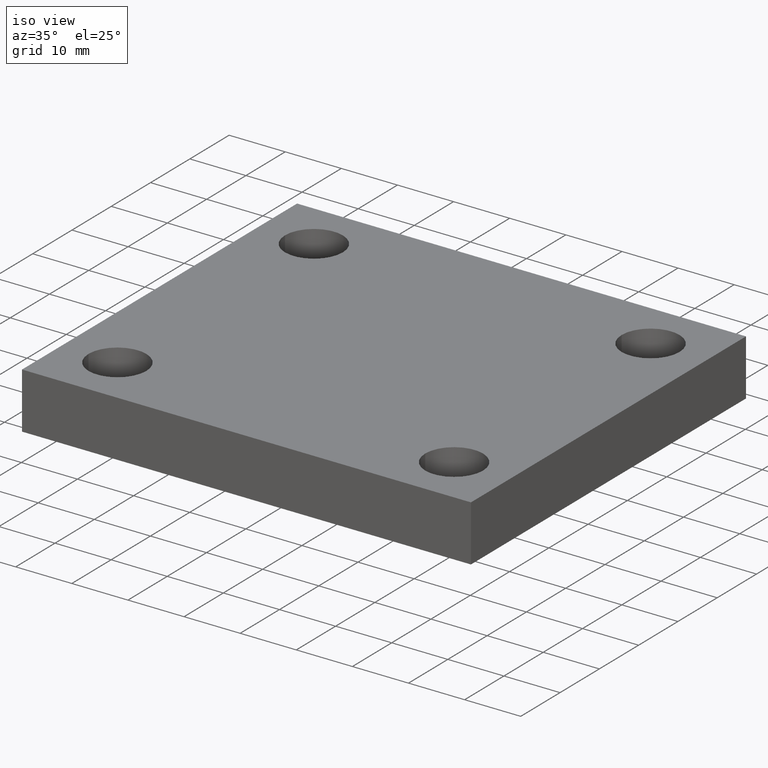
[diagram: clean part render]
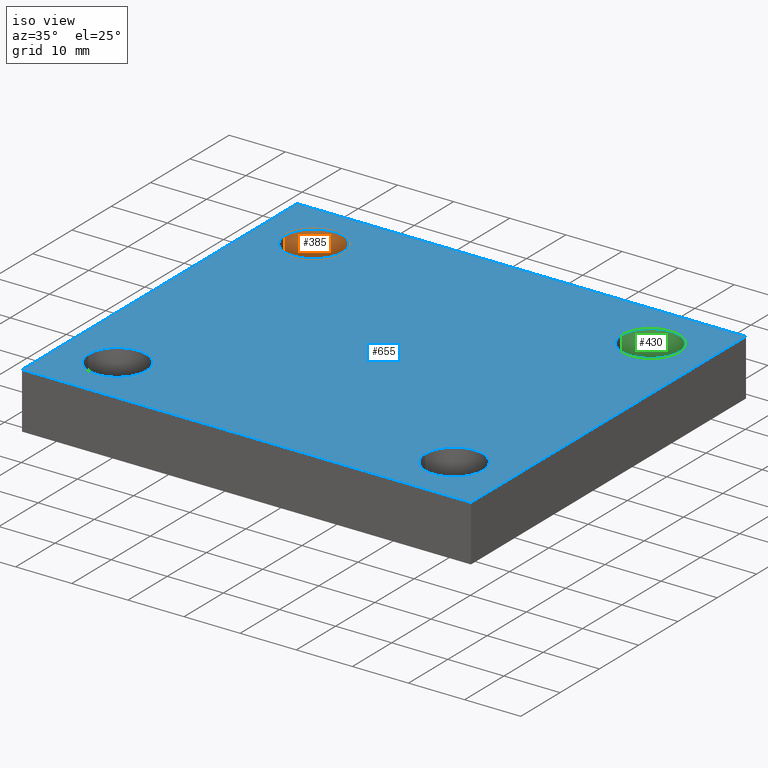
[diagram: same view with three faces highlighted in distinct colors, each labeled with its STEP entity id]
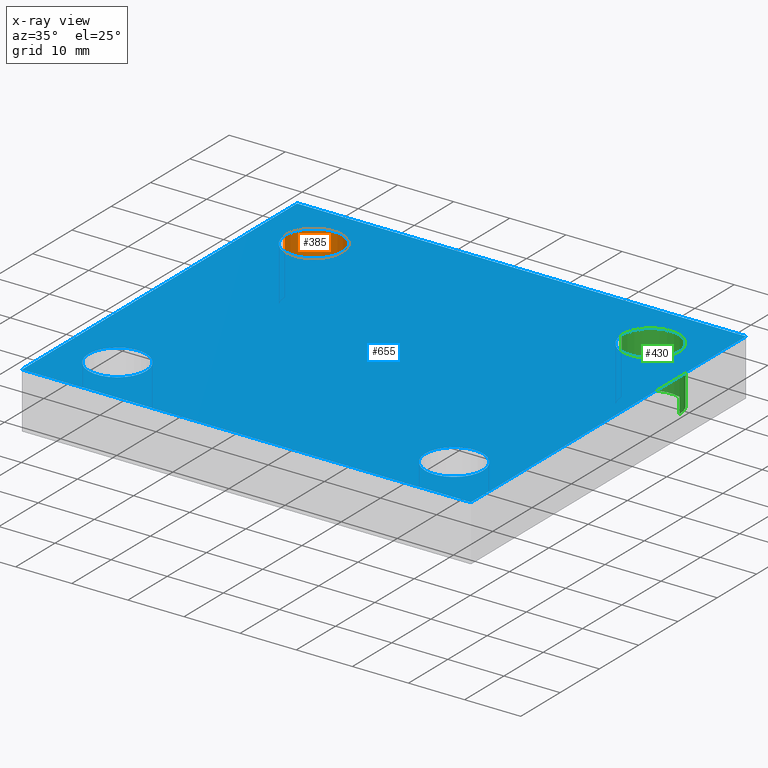
[diagram: x-ray of the same camera — body ghosted, the three highlighted faces saturated]
A machine part, iso view with three faces highlighted in distinct colors.
The next image is the same camera in x-ray (body ghosted, the three faces saturated) — at least one of them is partly hidden behind the body in this view.
Their STEP definitions:

[orange] entity #385 — the highlighted face is a freeform B-spline surface patch.
#196=CARTESIAN_POINT('',(31.089752180801717,5.972626184769103,0.0));
#197=VERTEX_POINT('',#196);
#198=CARTESIAN_POINT('',(31.089752180801721,5.972626184769104,10.0));
#199=VERTEX_POINT('',#198);
#200=CARTESIAN_POINT('',(31.089752180801717,5.972626184769103,0.0));
#201=DIRECTION('',(0.0,0.0,1.0));
#202=VECTOR('',#201,10.0);
#203=LINE('',#200,#202);
#204=EDGE_CURVE('',#197,#199,#203,.T.);
#206=CARTESIAN_POINT('',(20.789752180801720,5.972626184769103,0.0));
#207=VERTEX_POINT('',#206);
#215=CARTESIAN_POINT('',(20.789752180801720,5.972626184769105,10.0));
#216=VERTEX_POINT('',#215);
#217=CARTESIAN_POINT('',(20.789752180801720,5.972626184769105,10.0));
#218=DIRECTION('',(0.0,0.0,-1.0));
#219=VECTOR('',#218,10.0);
#220=LINE('',#217,#219);
#221=EDGE_CURVE('',#216,#207,#220,.T.);
#341=CARTESIAN_POINT('',(20.789752180801720,5.972626184769103,10.0));
#342=CARTESIAN_POINT('',(20.789752180801720,5.972626184769103,0.0));
#343=CARTESIAN_POINT('',(20.789752180801720,0.822626184769106,10.0));
#344=CARTESIAN_POINT('',(20.789752180801720,0.822626184769106,0.0));
#345=CARTESIAN_POINT('',(25.939752180801719,0.822626184769105,10.0));
#346=CARTESIAN_POINT('',(25.939752180801719,0.822626184769105,0.0));
#347=CARTESIAN_POINT('',(31.089752180801717,0.822626184769107,10.0));
#348=CARTESIAN_POINT('',(31.089752180801717,0.822626184769107,0.0));
#349=CARTESIAN_POINT('',(31.089752180801717,5.972626184769105,10.0));
#350=CARTESIAN_POINT('',(31.089752180801717,5.972626184769105,0.0));
#351=CARTESIAN_POINT('',(31.089752180801717,11.122626184769102,10.0));
#352=CARTESIAN_POINT('',(31.089752180801717,11.122626184769102,0.0));
#353=CARTESIAN_POINT('',(25.939752180801719,11.122626184769103,10.0));
#354=CARTESIAN_POINT('',(25.939752180801719,11.122626184769103,0.0));
#355=CARTESIAN_POINT('',(20.789752180801720,11.122626184769102,10.0));
#356=CARTESIAN_POINT('',(20.789752180801720,11.122626184769102,0.0));
#357=CARTESIAN_POINT('',(20.789752180801720,5.972626184769103,10.0));
#358=CARTESIAN_POINT('',(20.789752180801720,5.972626184769103,0.0));
#366=(BOUNDED_SURFACE()B_SPLINE_SURFACE(1,2,((#341,#343,#345,#347,#349,#351,#353,#355,#357),(#342,#344,#346,#348,#350,#352,#354,#356,#358)),.UNSPECIFIED.,.F.,.T.,.U.)B_SPLINE_SURFACE_WITH_KNOTS((2,2),(3,2,2,2,3),(-20.732190780643325,-18.790443207827792),(0.0,8.089601082993719,16.179202165987437,24.268803248981154,32.358404331974874),.UNSPECIFIED.)GEOMETRIC_REPRESENTATION_ITEM()RATIONAL_B_SPLINE_SURFACE(((1.0,0.707106781186548,1.0,0.707106781186548,1.0,0.707106781186548,1.0,0.707106781186548,1.0),(1.0,0.707106781186548,1.0,0.707106781186548,1.0,0.707106781186548,1.0,0.707106781186548,1.0)))REPRESENTATION_ITEM('')SURFACE());
#367=ORIENTED_EDGE('',*,*,#204,.T.);
#368=CARTESIAN_POINT('',(25.939752180801719,5.972626184769104,10.0));
#369=DIRECTION('',(0.0,0.0,-1.0));
#370=DIRECTION('',(1.0,0.0,0.0));
#371=AXIS2_PLACEMENT_3D('',#368,#369,#370);
#372=CIRCLE('',#371,5.150000000000000);
#373=EDGE_CURVE('',#216,#199,#372,.T.);
#374=ORIENTED_EDGE('',*,*,#373,.F.);
#375=ORIENTED_EDGE('',*,*,#221,.T.);
#376=CARTESIAN_POINT('',(25.939752180801719,5.972626184769104,0.0));
#377=DIRECTION('',(0.0,0.0,1.0));
#378=DIRECTION('',(1.0,0.0,0.0));
#379=AXIS2_PLACEMENT_3D('',#376,#377,#378);
#380=CIRCLE('',#379,5.150000000000000);
#381=EDGE_CURVE('',#197,#207,#380,.T.);
#382=ORIENTED_EDGE('',*,*,#381,.F.);
#383=EDGE_LOOP('',(#367,#374,#375,#382));
#384=FACE_OUTER_BOUND('',#383,.T.);
#385=ADVANCED_FACE('',(#384),#366,.F.);

[blue] entity #655 — the highlighted planar face has unit normal (0, 0, 1).
#72=CARTESIAN_POINT('',(91.089752180801753,-44.027373815230888,10.0));
#73=VERTEX_POINT('',#72);
#89=CARTESIAN_POINT('',(80.789752180801742,-44.027373815230888,10.0));
#90=VERTEX_POINT('',#89);
#97=CARTESIAN_POINT('',(85.939752180801747,-44.027373815230888,10.0));
#98=DIRECTION('',(0.0,0.0,-1.0));
#99=DIRECTION('',(1.0,0.0,0.0));
#100=AXIS2_PLACEMENT_3D('',#97,#98,#99);
#101=CIRCLE('',#100,5.150000000000000);
#102=EDGE_CURVE('',#73,#90,#101,.T.);
#135=CARTESIAN_POINT('',(91.089752180801753,5.972626184769104,10.0));
#136=VERTEX_POINT('',#135);
#152=CARTESIAN_POINT('',(80.789752180801742,5.972626184769105,10.0));
#153=VERTEX_POINT('',#152);
#160=CARTESIAN_POINT('',(85.939752180801747,5.972626184769104,10.0));
#161=DIRECTION('',(0.0,0.0,-1.0));
#162=DIRECTION('',(1.0,0.0,0.0));
#163=AXIS2_PLACEMENT_3D('',#160,#161,#162);
#164=CIRCLE('',#163,5.150000000000000);
#165=EDGE_CURVE('',#136,#153,#164,.T.);
#198=CARTESIAN_POINT('',(31.089752180801721,5.972626184769104,10.0));
#199=VERTEX_POINT('',#198);
#215=CARTESIAN_POINT('',(20.789752180801720,5.972626184769105,10.0));
#216=VERTEX_POINT('',#215);
#223=CARTESIAN_POINT('',(25.939752180801719,5.972626184769104,10.0));
#224=DIRECTION('',(0.0,0.0,-1.0));
#225=DIRECTION('',(1.0,0.0,0.0));
#226=AXIS2_PLACEMENT_3D('',#223,#224,#225);
#227=CIRCLE('',#226,5.150000000000000);
#228=EDGE_CURVE('',#199,#216,#227,.T.);
#261=CARTESIAN_POINT('',(31.089752180801721,-44.027373815230888,10.0));
#262=VERTEX_POINT('',#261);
#278=CARTESIAN_POINT('',(20.789752180801720,-44.027373815230888,10.0));
#279=VERTEX_POINT('',#278);
#286=CARTESIAN_POINT('',(25.939752180801719,-44.027373815230888,10.0));
#287=DIRECTION('',(0.0,0.0,-1.0));
#288=DIRECTION('',(1.0,0.0,0.0));
#289=AXIS2_PLACEMENT_3D('',#286,#287,#288);
#290=CIRCLE('',#289,5.150000000000000);
#291=EDGE_CURVE('',#262,#279,#290,.T.);
#323=CARTESIAN_POINT('',(25.939752180801719,-44.027373815230888,10.0));
#324=DIRECTION('',(0.0,0.0,-1.0));
#325=DIRECTION('',(1.0,0.0,0.0));
#326=AXIS2_PLACEMENT_3D('',#323,#324,#325);
#327=CIRCLE('',#326,5.150000000000000);
#328=EDGE_CURVE('',#279,#262,#327,.T.);
#368=CARTESIAN_POINT('',(25.939752180801719,5.972626184769104,10.0));
#369=DIRECTION('',(0.0,0.0,-1.0));
#370=DIRECTION('',(1.0,0.0,0.0));
#371=AXIS2_PLACEMENT_3D('',#368,#369,#370);
#372=CIRCLE('',#371,5.150000000000000);
#373=EDGE_CURVE('',#216,#199,#372,.T.);
#413=CARTESIAN_POINT('',(85.939752180801747,5.972626184769104,10.0));
#414=DIRECTION('',(0.0,0.0,-1.0));
#415=DIRECTION('',(1.0,0.0,0.0));
#416=AXIS2_PLACEMENT_3D('',#413,#414,#415);
#417=CIRCLE('',#416,5.150000000000000);
#418=EDGE_CURVE('',#153,#136,#417,.T.);
#458=CARTESIAN_POINT('',(85.939752180801747,-44.027373815230888,10.0));
#459=DIRECTION('',(0.0,0.0,-1.0));
#460=DIRECTION('',(1.0,0.0,0.0));
#461=AXIS2_PLACEMENT_3D('',#458,#459,#460);
#462=CIRCLE('',#461,5.150000000000000);
#463=EDGE_CURVE('',#90,#73,#462,.T.);
#481=CARTESIAN_POINT('',(95.939752180801719,15.972626184769121,10.0));
#482=VERTEX_POINT('',#481);
#483=CARTESIAN_POINT('',(95.939752180801733,-54.027373815230888,10.0));
#484=VERTEX_POINT('',#483);
#485=CARTESIAN_POINT('',(95.939752180801719,15.972626184769121,10.0));
#486=DIRECTION('',(0.0,-1.0,0.0));
#487=VECTOR('',#486,70.000000000000014);
#488=LINE('',#485,#487);
#489=EDGE_CURVE('',#482,#484,#488,.T.);
#521=CARTESIAN_POINT('',(15.939752180801719,-54.027373815230895,10.0));
#522=VERTEX_POINT('',#521);
#523=CARTESIAN_POINT('',(95.939752180801733,-54.027373815230888,10.0));
#524=DIRECTION('',(-1.0,0.0,0.0));
#525=VECTOR('',#524,80.000000000000014);
#526=LINE('',#523,#525);
#527=EDGE_CURVE('',#484,#522,#526,.T.);
#552=CARTESIAN_POINT('',(15.939752180801714,15.972626184769103,10.0));
#553=VERTEX_POINT('',#552);
#554=CARTESIAN_POINT('',(15.939752180801719,-54.027373815230895,10.0));
#555=DIRECTION('',(0.0,1.0,0.0));
#556=VECTOR('',#555,70.0);
#557=LINE('',#554,#556);
#558=EDGE_CURVE('',#522,#553,#557,.T.);
#583=CARTESIAN_POINT('',(15.939752180801714,15.972626184769103,10.0));
#584=DIRECTION('',(1.0,0.0,0.0));
#585=VECTOR('',#584,80.0);
#586=LINE('',#583,#585);
#587=EDGE_CURVE('',#553,#482,#586,.T.);
#628=CARTESIAN_POINT('',(55.939752180801733,-19.027373815230892,10.0));
#629=DIRECTION('',(0.0,0.0,1.0));
#630=DIRECTION('',(1.0,0.0,0.0));
#631=AXIS2_PLACEMENT_3D('',#628,#629,#630);
#632=PLANE('',#631);
#633=ORIENTED_EDGE('',*,*,#489,.F.);
#634=ORIENTED_EDGE('',*,*,#587,.F.);
#635=ORIENTED_EDGE('',*,*,#558,.F.);
#636=ORIENTED_EDGE('',*,*,#527,.F.);
#637=EDGE_LOOP('',(#633,#634,#635,#636));
#638=FACE_OUTER_BOUND('',#637,.T.);
#639=ORIENTED_EDGE('',*,*,#291,.T.);
#640=ORIENTED_EDGE('',*,*,#328,.T.);
#641=EDGE_LOOP('',(#639,#640));
#642=FACE_BOUND('',#641,.T.);
#643=ORIENTED_EDGE('',*,*,#228,.T.);
#644=ORIENTED_EDGE('',*,*,#373,.T.);
#645=EDGE_LOOP('',(#643,#644));
#646=FACE_BOUND('',#645,.T.);
#647=ORIENTED_EDGE('',*,*,#165,.T.);
#648=ORIENTED_EDGE('',*,*,#418,.T.);
#649=EDGE_LOOP('',(#647,#648));
#650=FACE_BOUND('',#649,.T.);
#651=ORIENTED_EDGE('',*,*,#102,.T.);
#652=ORIENTED_EDGE('',*,*,#463,.T.);
#653=EDGE_LOOP('',(#651,#652));
#654=FACE_BOUND('',#653,.T.);
#655=ADVANCED_FACE('',(#638,#642,#646,#650,#654),#632,.T.);

[green] entity #430 — the highlighted face is a freeform B-spline surface patch.
#133=CARTESIAN_POINT('',(91.089752180801753,5.972626184769103,0.0));
#134=VERTEX_POINT('',#133);
#135=CARTESIAN_POINT('',(91.089752180801753,5.972626184769104,10.0));
#136=VERTEX_POINT('',#135);
#137=CARTESIAN_POINT('',(91.089752180801753,5.972626184769103,0.0));
#138=DIRECTION('',(0.0,0.0,1.0));
#139=VECTOR('',#138,10.0);
#140=LINE('',#137,#139);
#141=EDGE_CURVE('',#134,#136,#140,.T.);
#143=CARTESIAN_POINT('',(80.789752180801742,5.972626184769103,0.0));
#144=VERTEX_POINT('',#143);
#152=CARTESIAN_POINT('',(80.789752180801742,5.972626184769105,10.0));
#153=VERTEX_POINT('',#152);
#154=CARTESIAN_POINT('',(80.789752180801742,5.972626184769105,10.0));
#155=DIRECTION('',(0.0,0.0,-1.0));
#156=VECTOR('',#155,10.0);
#157=LINE('',#154,#156);
#158=EDGE_CURVE('',#153,#144,#157,.T.);
#386=CARTESIAN_POINT('',(80.789752180801742,5.972626184769103,10.0));
#387=CARTESIAN_POINT('',(80.789752180801742,5.972626184769103,0.0));
#388=CARTESIAN_POINT('',(80.789752180801742,0.822626184769098,10.0));
#389=CARTESIAN_POINT('',(80.789752180801742,0.822626184769098,0.0));
#390=CARTESIAN_POINT('',(85.939752180801747,0.822626184769098,10.0));
#391=CARTESIAN_POINT('',(85.939752180801747,0.822626184769098,0.0));
#392=CARTESIAN_POINT('',(91.089752180801767,0.822626184769100,10.0));
#393=CARTESIAN_POINT('',(91.089752180801767,0.822626184769100,0.0));
#394=CARTESIAN_POINT('',(91.089752180801753,5.972626184769105,10.0));
#395=CARTESIAN_POINT('',(91.089752180801753,5.972626184769105,0.0));
#396=CARTESIAN_POINT('',(91.089752180801767,11.122626184769109,10.0));
#397=CARTESIAN_POINT('',(91.089752180801767,11.122626184769109,0.0));
#398=CARTESIAN_POINT('',(85.939752180801747,11.122626184769111,10.0));
#399=CARTESIAN_POINT('',(85.939752180801747,11.122626184769111,0.0));
#400=CARTESIAN_POINT('',(80.789752180801742,11.122626184769109,10.0));
#401=CARTESIAN_POINT('',(80.789752180801742,11.122626184769109,0.0));
#402=CARTESIAN_POINT('',(80.789752180801742,5.972626184769103,10.0));
#403=CARTESIAN_POINT('',(80.789752180801742,5.972626184769103,0.0));
#411=(BOUNDED_SURFACE()B_SPLINE_SURFACE(1,2,((#386,#388,#390,#392,#394,#396,#398,#400,#402),(#387,#389,#391,#393,#395,#397,#399,#401,#403)),.UNSPECIFIED.,.F.,.T.,.U.)B_SPLINE_SURFACE_WITH_KNOTS((2,2),(3,2,2,2,3),(-20.732190780643325,-18.790443207827792),(0.0,8.089601082993719,16.179202165987437,24.268803248981154,32.358404331974874),.UNSPECIFIED.)GEOMETRIC_REPRESENTATION_ITEM()RATIONAL_B_SPLINE_SURFACE(((1.0,0.707106781186548,1.0,0.707106781186548,1.0,0.707106781186548,1.0,0.707106781186548,1.0),(1.0,0.707106781186548,1.0,0.707106781186548,1.0,0.707106781186548,1.0,0.707106781186548,1.0)))REPRESENTATION_ITEM('')SURFACE());
#412=ORIENTED_EDGE('',*,*,#141,.T.);
#413=CARTESIAN_POINT('',(85.939752180801747,5.972626184769104,10.0));
#414=DIRECTION('',(0.0,0.0,-1.0));
#415=DIRECTION('',(1.0,0.0,0.0));
#416=AXIS2_PLACEMENT_3D('',#413,#414,#415);
#417=CIRCLE('',#416,5.150000000000000);
#418=EDGE_CURVE('',#153,#136,#417,.T.);
#419=ORIENTED_EDGE('',*,*,#418,.F.);
#420=ORIENTED_EDGE('',*,*,#158,.T.);
#421=CARTESIAN_POINT('',(85.939752180801747,5.972626184769104,0.0));
#422=DIRECTION('',(0.0,0.0,1.0));
#423=DIRECTION('',(1.0,0.0,0.0));
#424=AXIS2_PLACEMENT_3D('',#421,#422,#423);
#425=CIRCLE('',#424,5.150000000000000);
#426=EDGE_CURVE('',#134,#144,#425,.T.);
#427=ORIENTED_EDGE('',*,*,#426,.F.);
#428=EDGE_LOOP('',(#412,#419,#420,#427));
#429=FACE_OUTER_BOUND('',#428,.T.);
#430=ADVANCED_FACE('',(#429),#411,.F.);